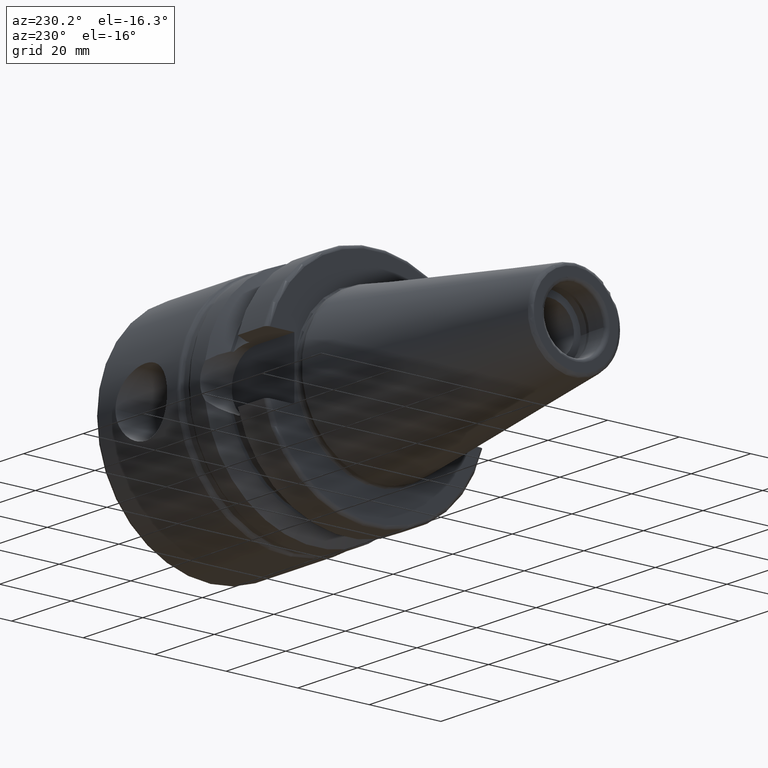
[diagram: clean part render]
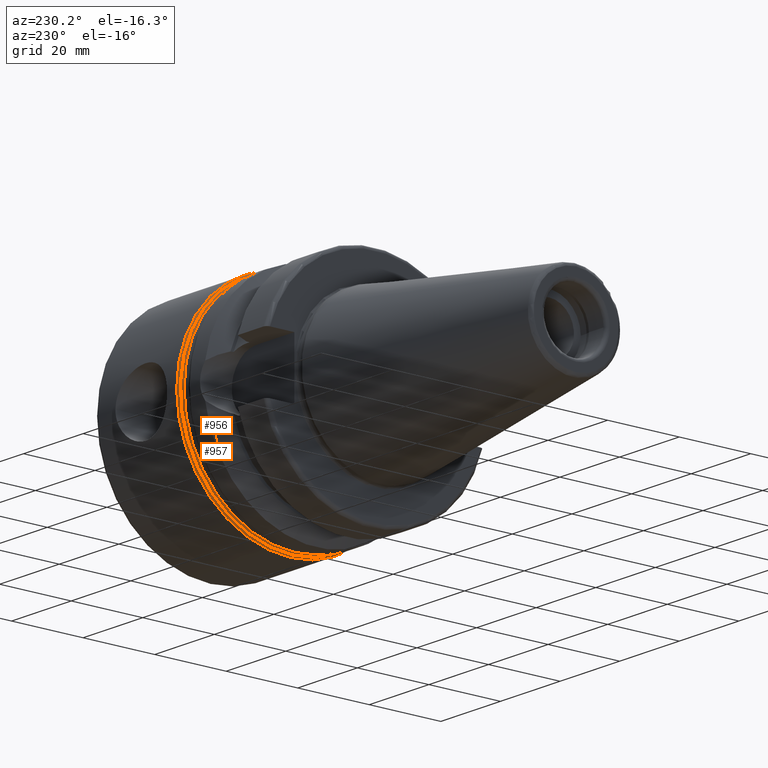
[diagram: same view with one multi-face feature highlighted, each face labeled with its STEP entity id]
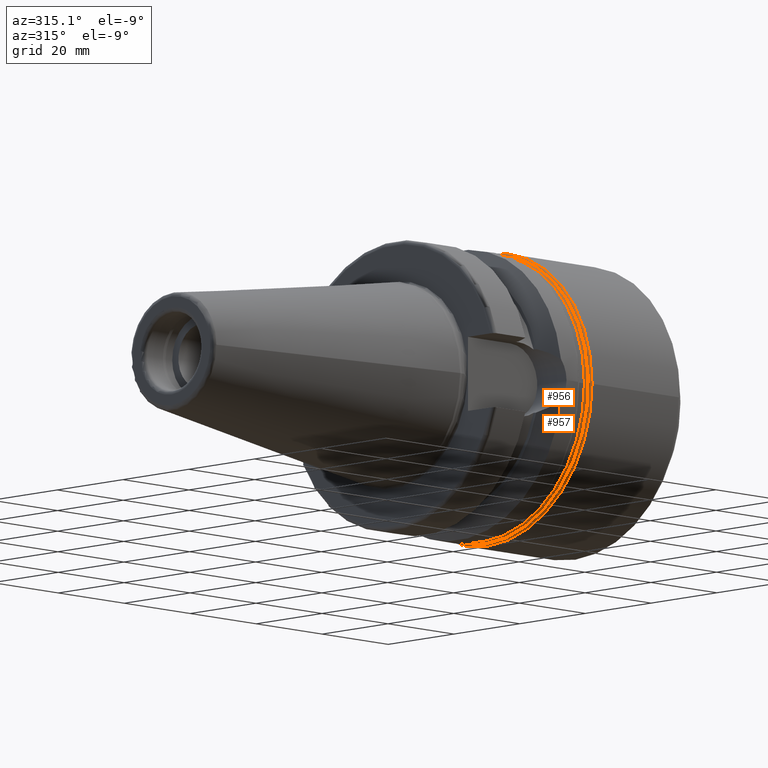
[diagram: same view with one multi-face feature highlighted, each face labeled with its STEP entity id]
A machine part, auxiliary view. The highlighted faces form ONE feature: a constant-radius fillet chain: 2 tangent blend faces with common blend radius 1 mm. The faces share edges in the B-rep.
A second angle (auxiliary view) of the same feature is appended — it is thin or edge-on in the first view.
Their STEP definitions:
[1] entity #956 (Torus):
#86=CIRCLE('',#1067,31.7500000000001);
#87=CIRCLE('',#1068,31.7500000000001);
#88=CIRCLE('',#1070,31.375);
#89=CIRCLE('',#1071,1.);
#137=TOROIDAL_SURFACE('',#1069,30.7500000000001,1.);
#162=FACE_OUTER_BOUND('',#226,.T.);
#226=EDGE_LOOP('',(#710,#711,#712,#713,#714));
#414=VERTEX_POINT('',#1629);
#415=VERTEX_POINT('',#1630);
#416=VERTEX_POINT('',#1635);
#522=EDGE_CURVE('',#414,#415,#86,.T.);
#524=EDGE_CURVE('',#415,#414,#87,.T.);
#525=EDGE_CURVE('',#416,#416,#88,.T.);
#526=EDGE_CURVE('',#416,#415,#89,.T.);
#710=ORIENTED_EDGE('',*,*,#525,.F.);
#711=ORIENTED_EDGE('',*,*,#526,.T.);
#712=ORIENTED_EDGE('',*,*,#524,.T.);
#713=ORIENTED_EDGE('',*,*,#522,.T.);
#714=ORIENTED_EDGE('',*,*,#526,.F.);
#956=ADVANCED_FACE('',(#162),#137,.T.);
#1067=AXIS2_PLACEMENT_3D('',#1631,#1257,#1258);
#1068=AXIS2_PLACEMENT_3D('',#1633,#1260,#1261);
#1069=AXIS2_PLACEMENT_3D('',#1634,#1262,#1263);
#1070=AXIS2_PLACEMENT_3D('',#1636,#1264,#1265);
#1071=AXIS2_PLACEMENT_3D('',#1637,#1266,#1267);
#1257=DIRECTION('center_axis',(-1.,0.,0.));
#1258=DIRECTION('ref_axis',(0.,0.,1.));
#1260=DIRECTION('center_axis',(-1.,0.,0.));
#1261=DIRECTION('ref_axis',(0.,0.,1.));
#1262=DIRECTION('center_axis',(-1.,0.,0.));
#1263=DIRECTION('ref_axis',(0.,0.,1.));
#1264=DIRECTION('center_axis',(-1.,0.,0.));
#1265=DIRECTION('ref_axis',(0.,0.,1.));
#1266=DIRECTION('center_axis',(0.,-1.,1.22464679914735E-16));
#1267=DIRECTION('ref_axis',(0.,-1.22464679914735E-16,-1.));
#1629=CARTESIAN_POINT('',(30.4982486540519,-31.7499999999999,3.88825358729284E-15));
#1630=CARTESIAN_POINT('',(30.4982486540519,-3.88825358729286E-15,-31.7500000000001));
#1631=CARTESIAN_POINT('Origin',(30.4982486540519,0.,0.));
#1633=CARTESIAN_POINT('Origin',(30.4982486540519,0.,0.));
#1634=CARTESIAN_POINT('Origin',(30.4982486540519,0.,0.));
#1635=CARTESIAN_POINT('',(29.7176239042521,-3.84232933232482E-15,-31.375));
#1636=CARTESIAN_POINT('Origin',(29.7176239042521,0.,0.));
#1637=CARTESIAN_POINT('Origin',(30.4982486540519,-3.76578890737813E-15,
-30.7500000000001));
[2] entity #957 (Torus):
#60=CIRCLE('',#1027,31.);
#61=CIRCLE('',#1028,31.);
#88=CIRCLE('',#1070,31.375);
#90=CIRCLE('',#1073,1.);
#138=TOROIDAL_SURFACE('',#1072,31.9999999999999,1.);
#163=FACE_OUTER_BOUND('',#227,.T.);
#227=EDGE_LOOP('',(#715,#716,#717,#718,#719));
#392=VERTEX_POINT('',#1561);
#393=VERTEX_POINT('',#1563);
#416=VERTEX_POINT('',#1635);
#491=EDGE_CURVE('',#392,#393,#60,.T.);
#492=EDGE_CURVE('',#393,#392,#61,.T.);
#525=EDGE_CURVE('',#416,#416,#88,.T.);
#527=EDGE_CURVE('',#416,#393,#90,.T.);
#715=ORIENTED_EDGE('',*,*,#525,.T.);
#716=ORIENTED_EDGE('',*,*,#527,.T.);
#717=ORIENTED_EDGE('',*,*,#491,.F.);
#718=ORIENTED_EDGE('',*,*,#492,.F.);
#719=ORIENTED_EDGE('',*,*,#527,.F.);
#957=ADVANCED_FACE('',(#163),#138,.F.);
#1027=AXIS2_PLACEMENT_3D('',#1564,#1172,#1173);
#1028=AXIS2_PLACEMENT_3D('',#1565,#1174,#1175);
#1070=AXIS2_PLACEMENT_3D('',#1636,#1264,#1265);
#1072=AXIS2_PLACEMENT_3D('',#1638,#1268,#1269);
#1073=AXIS2_PLACEMENT_3D('',#1639,#1270,#1271);
#1172=DIRECTION('center_axis',(-1.,0.,0.));
#1173=DIRECTION('ref_axis',(0.,0.,1.));
#1174=DIRECTION('center_axis',(-1.,0.,0.));
#1175=DIRECTION('ref_axis',(0.,0.,1.));
#1264=DIRECTION('center_axis',(-1.,0.,0.));
#1265=DIRECTION('ref_axis',(0.,0.,1.));
#1268=DIRECTION('center_axis',(-1.,0.,0.));
#1269=DIRECTION('ref_axis',(0.,0.,1.));
#1270=DIRECTION('center_axis',(0.,-1.,1.22464679914735E-16));
#1271=DIRECTION('ref_axis',(0.,-1.22464679914735E-16,-1.));
#1561=CARTESIAN_POINT('',(28.9369991544522,-31.,3.79640507735679E-15));
#1563=CARTESIAN_POINT('',(28.9369991544522,-3.79640507735679E-15,-31.));
#1564=CARTESIAN_POINT('Origin',(28.9369991544522,0.,0.));
#1565=CARTESIAN_POINT('Origin',(28.9369991544522,0.,0.));
#1635=CARTESIAN_POINT('',(29.7176239042521,-3.84232933232482E-15,-31.375));
#1636=CARTESIAN_POINT('Origin',(29.7176239042521,0.,0.));
#1638=CARTESIAN_POINT('Origin',(28.9369991544522,0.,0.));
#1639=CARTESIAN_POINT('Origin',(28.9369991544522,-3.91886975727152E-15,
-31.9999999999999));